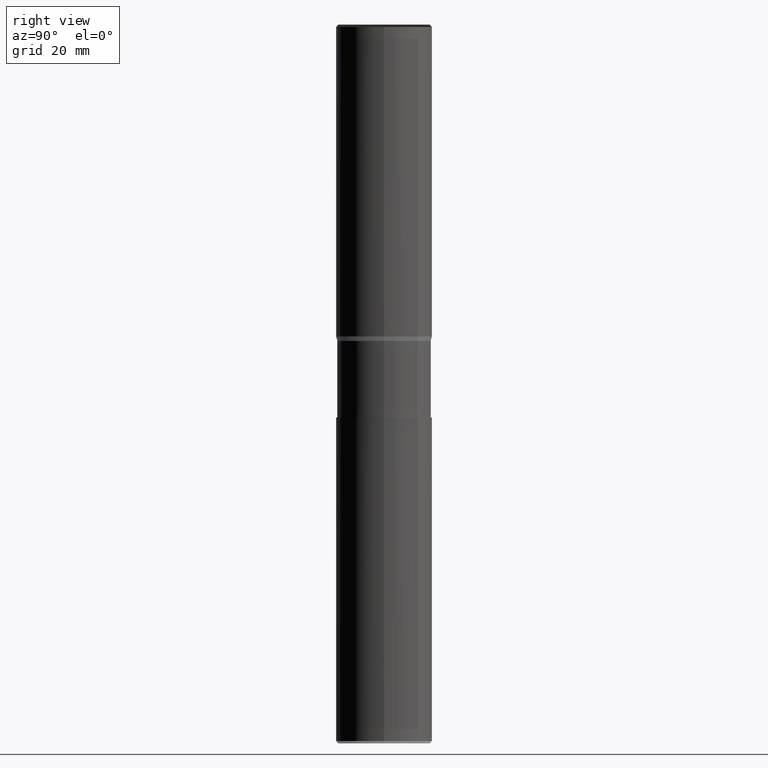
[diagram: clean part render]
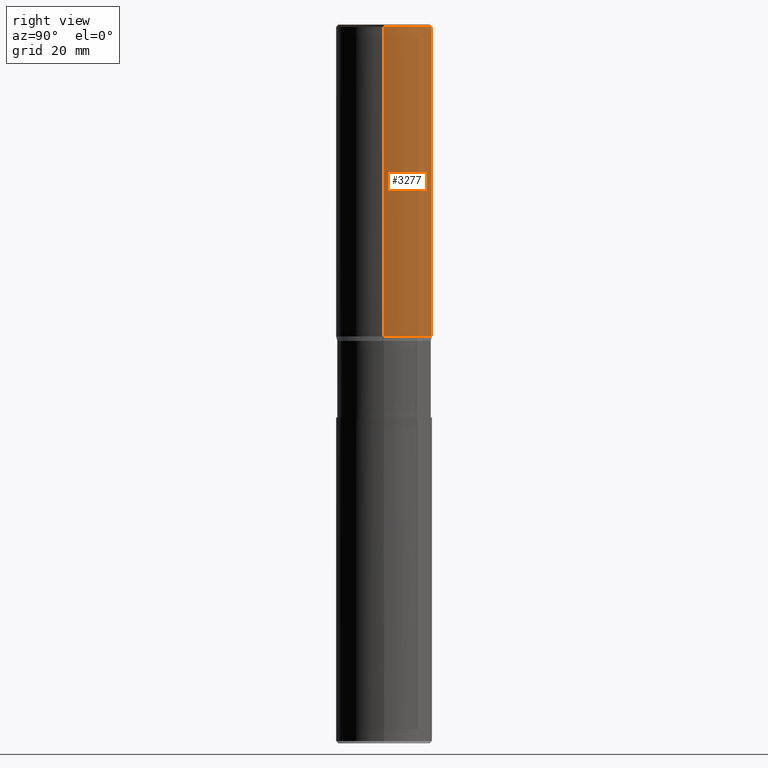
[diagram: same view with one face highlighted and labeled with its STEP entity id]
A machine part, right view. The second image highlights one B-rep face of the part: STEP entity #3277.
In plain terms, the highlighted face is a freeform B-spline surface patch.
Its self-contained STEP definition (entity closure, byte-faithful):
#3016=CARTESIAN_POINT('',(10.0,0.0,0.0));
#3017=CARTESIAN_POINT('',(10.0,10.0,0.0));
#3018=CARTESIAN_POINT('',(0.0,10.0,0.0));
#3019=CARTESIAN_POINT('',(-10.0,10.0,0.0));
#3020=CARTESIAN_POINT('',(-10.0,0.0,0.0));
#3021=CARTESIAN_POINT('',(10.0,0.0,64.56699011));
#3022=CARTESIAN_POINT('',(10.0,10.0,64.56699011));
#3023=CARTESIAN_POINT('',(0.0,10.0,64.56699011));
#3024=CARTESIAN_POINT('',(-10.0,10.0,64.56699011));
#3025=CARTESIAN_POINT('',(-10.0,0.0,64.56699011));
#3258=(
BOUNDED_SURFACE()
B_SPLINE_SURFACE(1,2,(
(#3016,#3017,#3018,#3019,#3020),
(#3021,#3022,#3023,#3024,#3025)
), .UNSPECIFIED.,.F.,.F.,.F.)
B_SPLINE_SURFACE_WITH_KNOTS((2,2),(3,2,3),(
0.0,1.0),(
0.0,0.5,1.0), .UNSPECIFIED.)
GEOMETRIC_REPRESENTATION_ITEM()
RATIONAL_B_SPLINE_SURFACE(((1.0,0.707106781187,1.0,0.707106781187,1.0),
(1.0,0.707106781187,1.0,0.707106781187,1.0)
))
REPRESENTATION_ITEM('')
SURFACE()
);
#3259=(
BOUNDED_CURVE()
B_SPLINE_CURVE(2,(#3021,#3022,#3023,#3024,#3025),.UNSPECIFIED.,.F.,.F.)
B_SPLINE_CURVE_WITH_KNOTS((3,2,3),
(0.0,0.5,1.0),.UNSPECIFIED.)
CURVE()
GEOMETRIC_REPRESENTATION_ITEM()
RATIONAL_B_SPLINE_CURVE((1.0,0.707106781187,1.0,0.707106781187,1.0))
REPRESENTATION_ITEM('')
);
#3260=(
BOUNDED_CURVE()
B_SPLINE_CURVE(1,(#3025,#3020),.UNSPECIFIED.,.F.,.F.)
B_SPLINE_CURVE_WITH_KNOTS((2,2),
(0.0,1.0),.UNSPECIFIED.)
CURVE()
GEOMETRIC_REPRESENTATION_ITEM()
RATIONAL_B_SPLINE_CURVE((1.0,1.0))
REPRESENTATION_ITEM('')
);
#3261=(
BOUNDED_CURVE()
B_SPLINE_CURVE(2,(#3020,#3019,#3018,#3017,#3016),.UNSPECIFIED.,.F.,.F.)
B_SPLINE_CURVE_WITH_KNOTS((3,2,3),
(0.0,0.5,1.0),.UNSPECIFIED.)
CURVE()
GEOMETRIC_REPRESENTATION_ITEM()
RATIONAL_B_SPLINE_CURVE((1.0,0.707106781187,1.0,0.707106781187,1.0))
REPRESENTATION_ITEM('')
);
#3262=(
BOUNDED_CURVE()
B_SPLINE_CURVE(1,(#3016,#3021),.UNSPECIFIED.,.F.,.F.)
B_SPLINE_CURVE_WITH_KNOTS((2,2),
(0.0,1.0),.UNSPECIFIED.)
CURVE()
GEOMETRIC_REPRESENTATION_ITEM()
RATIONAL_B_SPLINE_CURVE((1.0,1.0))
REPRESENTATION_ITEM('')
);
#3263=VERTEX_POINT('',#3016);
#3264=VERTEX_POINT('',#3020);
#3265=VERTEX_POINT('',#3021);
#3266=VERTEX_POINT('',#3025);
#3267=EDGE_CURVE('',#3265,#3266,#3259,.T.);
#3268=EDGE_CURVE('',#3266,#3264,#3260,.T.);
#3269=EDGE_CURVE('',#3264,#3263,#3261,.T.);
#3270=EDGE_CURVE('',#3263,#3265,#3262,.T.);
#3271=ORIENTED_EDGE('',*,*,#3267,.T.);
#3272=ORIENTED_EDGE('',*,*,#3268,.T.);
#3273=ORIENTED_EDGE('',*,*,#3269,.T.);
#3274=ORIENTED_EDGE('',*,*,#3270,.T.);
#3275=EDGE_LOOP('',(#3271,#3272,#3273,#3274));
#3276=FACE_OUTER_BOUND('',#3275,.T.);
#3277=ADVANCED_FACE('',(#3276),#3258,.T.);